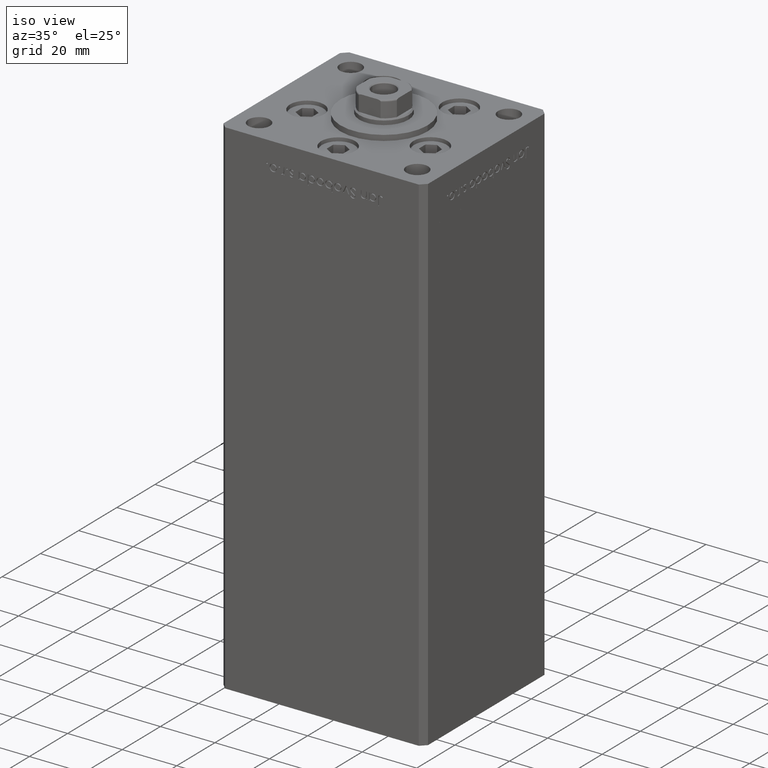
[diagram: clean part render]
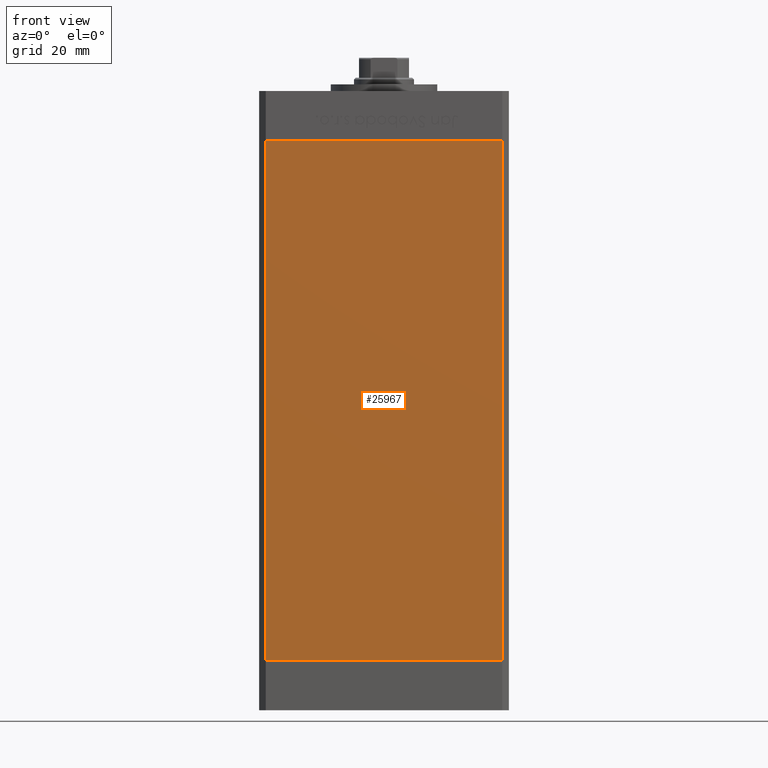
[diagram: tour spotlight — one face highlighted and labeled with its STEP entity id]
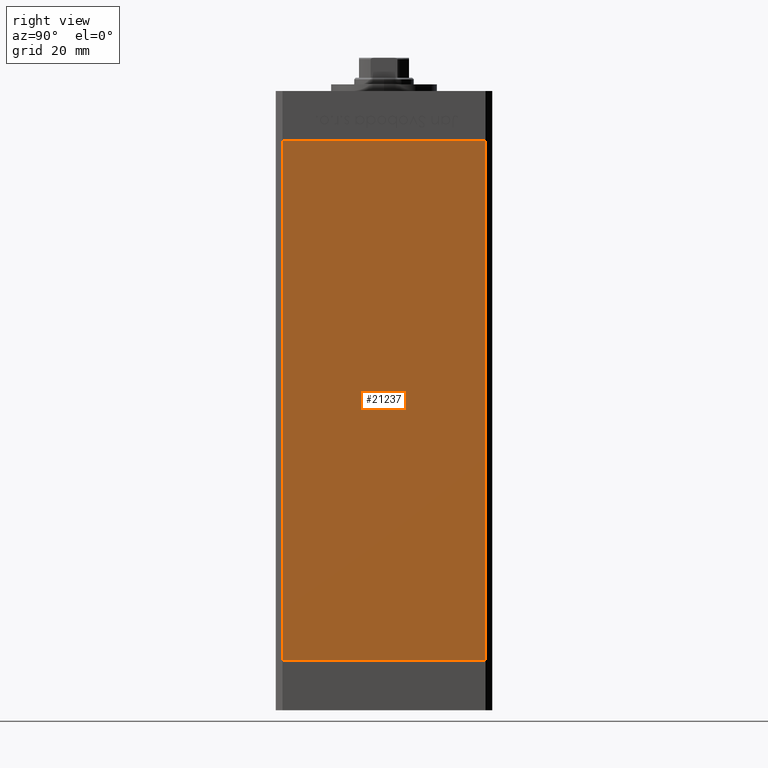
[diagram: tour spotlight — one face highlighted and labeled with its STEP entity id]
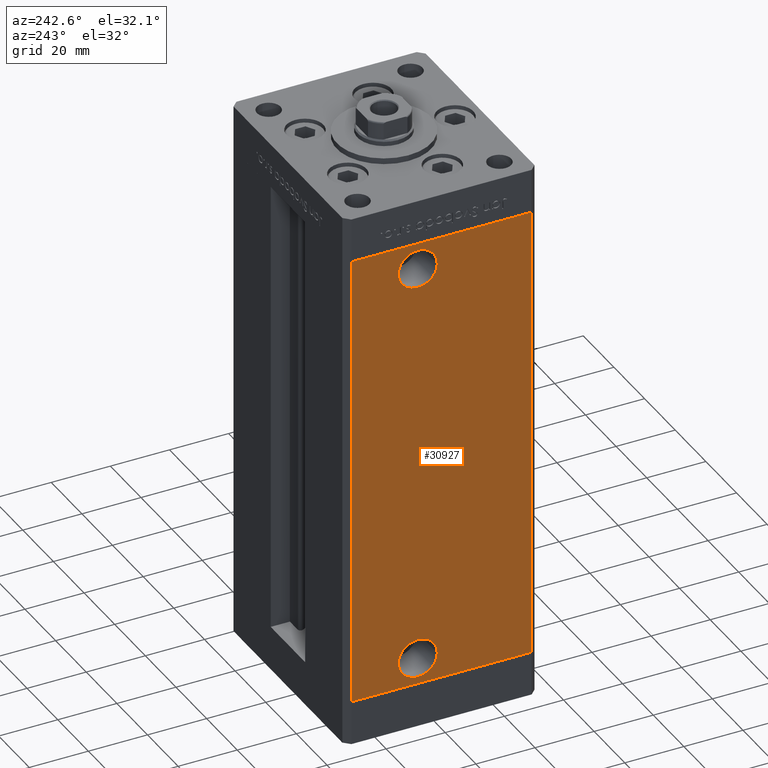
[diagram: tour spotlight — one face highlighted and labeled with its STEP entity id]
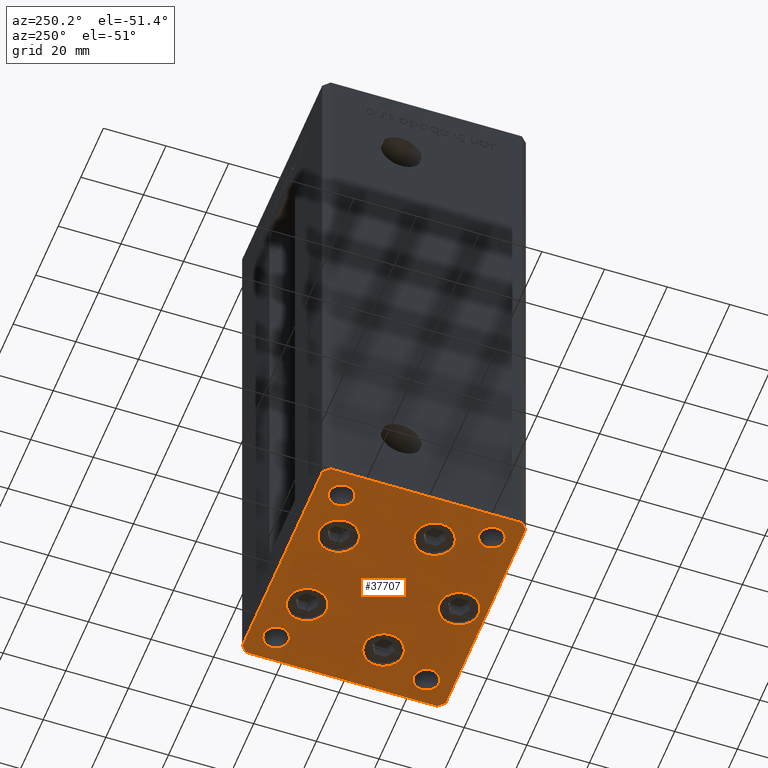
[diagram: tour spotlight — one face highlighted and labeled with its STEP entity id]
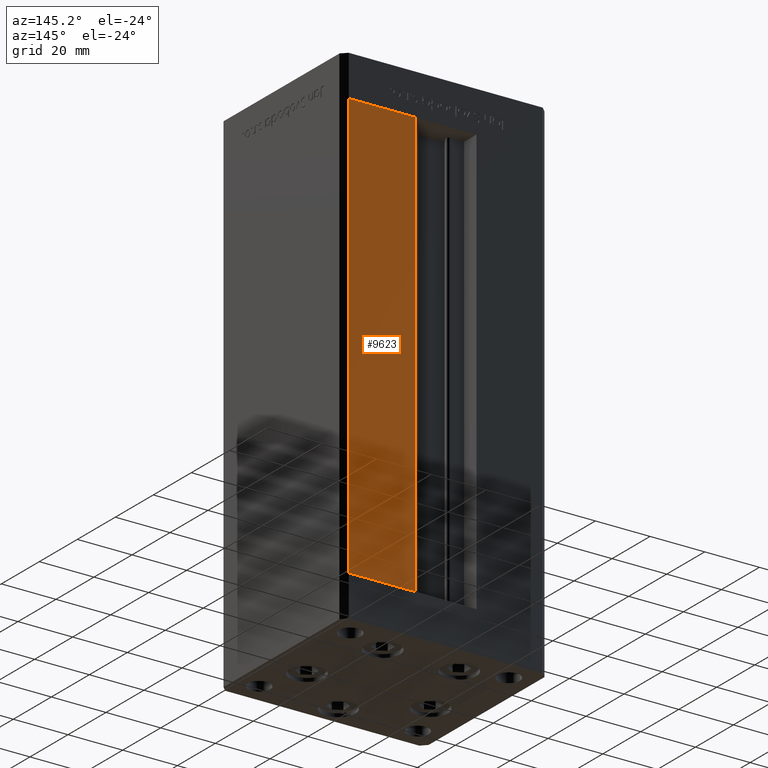
[diagram: tour spotlight — one face highlighted and labeled with its STEP entity id]
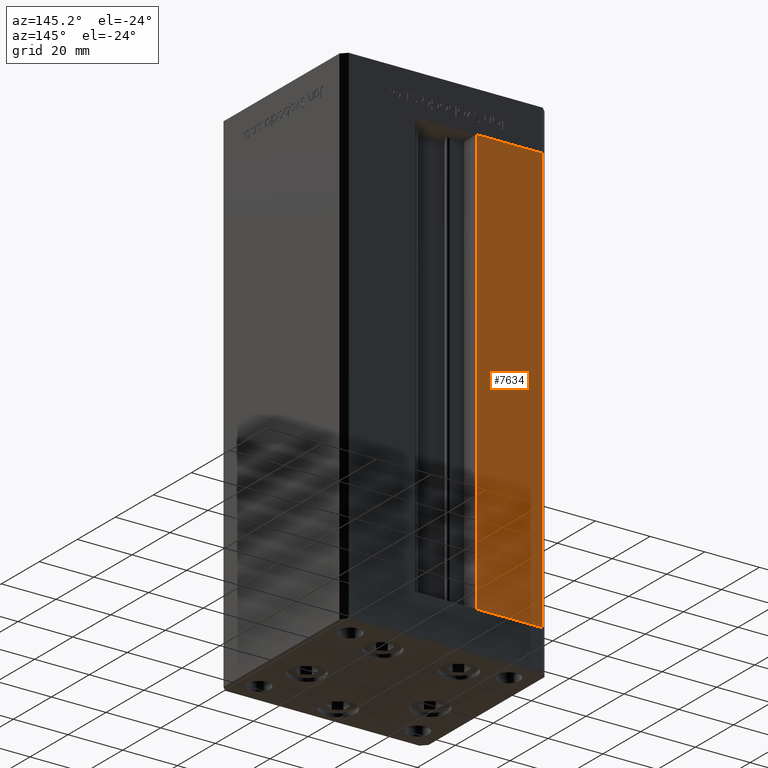
[diagram: tour spotlight — one face highlighted and labeled with its STEP entity id]
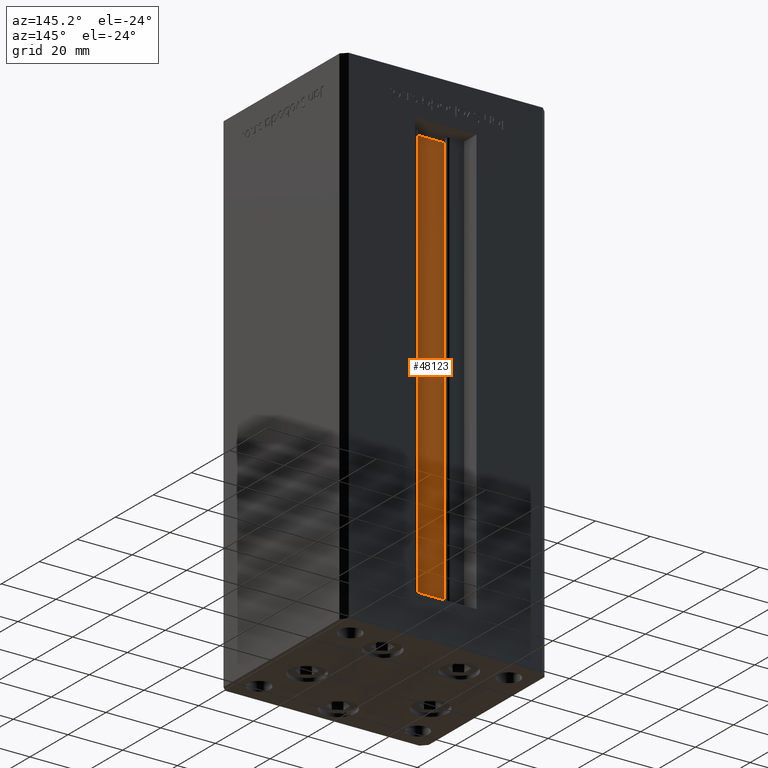
[diagram: tour spotlight — one face highlighted and labeled with its STEP entity id]
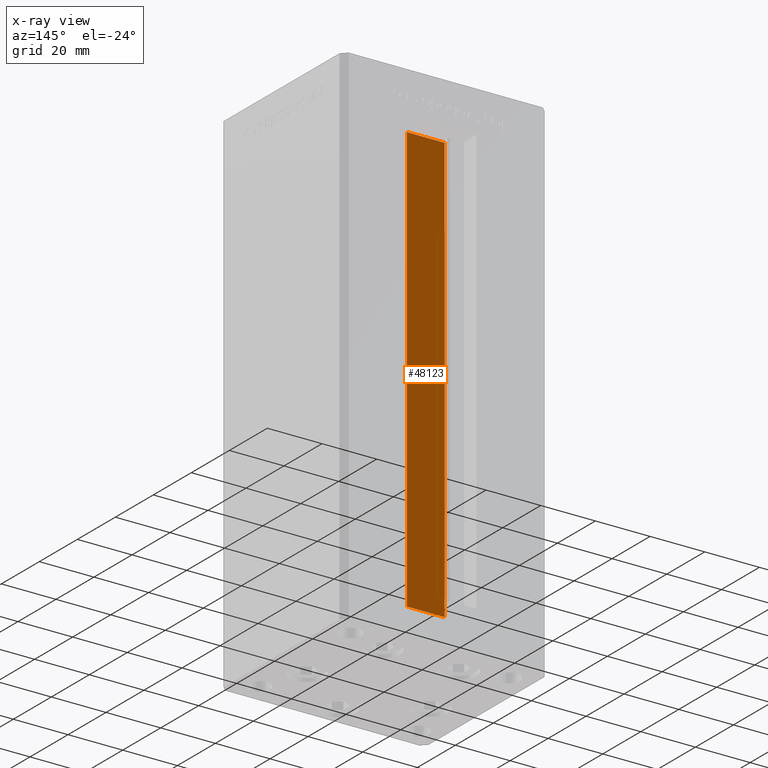
[diagram: x-ray of the same camera — body ghosted, this tour face saturated]
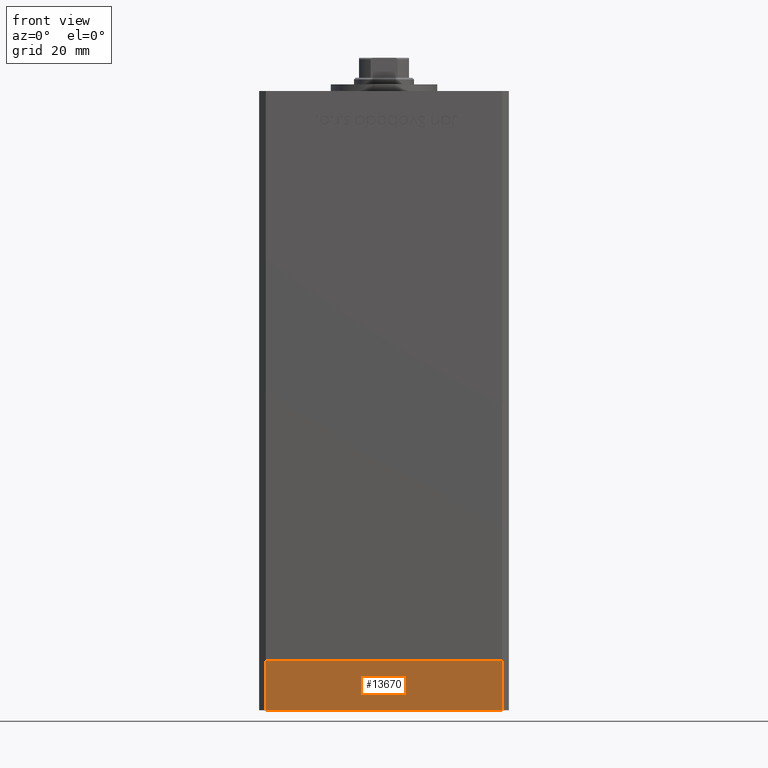
[diagram: tour spotlight — one face highlighted and labeled with its STEP entity id]
A machine part: a face-by-face anatomy tour. The part has 1183 B-rep faces; the first image is the clean iso view, then the 8 largest visible faces are spotlighted one at a time (largest first), each with its STEP entity span.

Face 1 — front view, entity #25967. In plain terms, the highlighted planar face has unit normal (0, 1, 0).
Definition (entity closure, byte-faithful):
#868 = VECTOR ( 'NONE', #9389, 1000.000000000000000 ) ;
#2019 = VECTOR ( 'NONE', #15200, 1000.000000000000000 ) ;
#2299 = DIRECTION ( 'NONE',  ( 1.000000000000000000, 0.000000000000000000, 0.000000000000000000 ) ) ;
#5187 = ORIENTED_EDGE ( 'NONE', *, *, #42326, .T. ) ;
#5468 = FACE_OUTER_BOUND ( 'NONE', #33729, .T. ) ;
#5989 = PLANE ( 'NONE',  #50704 ) ;
#6705 = EDGE_CURVE ( 'NONE', #38616, #35753, #29625, .T. ) ;
#6835 = CARTESIAN_POINT ( 'NONE',  ( -35.49999999999999289, -32.50000000000000000, 0.000000000000000000 ) ) ;
#9389 = DIRECTION ( 'NONE',  ( 1.000000000000000000, 0.000000000000000000, 0.000000000000000000 ) ) ;
#9842 = CARTESIAN_POINT ( 'NONE',  ( 35.49999999999999289, -32.50000000000000000, 156.0000000000000000 ) ) ;
#10094 = CARTESIAN_POINT ( 'NONE',  ( -35.49999999999999289, -32.50000000000000000, 156.0000000000000000 ) ) ;
#11077 = VERTEX_POINT ( 'NONE', #17949 ) ;
#13121 = DIRECTION ( 'NONE',  ( 0.000000000000000000, 1.000000000000000000, 0.000000000000000000 ) ) ;
#13667 = ORIENTED_EDGE ( 'NONE', *, *, #15726, .F. ) ;
#15200 = DIRECTION ( 'NONE',  ( -0.000000000000000000, -0.000000000000000000, -1.000000000000000000 ) ) ;
#15726 = EDGE_CURVE ( 'NONE', #38616, #20259, #17039, .T. ) ;
#17039 = LINE ( 'NONE', #45023, #868 ) ;
#17949 = CARTESIAN_POINT ( 'NONE',  ( 35.49999999999999289, -32.50000000000000000, 0.000000000000000000 ) ) ;
#20259 = VERTEX_POINT ( 'NONE', #9842 ) ;
#21428 = DIRECTION ( 'NONE',  ( -0.000000000000000000, -0.000000000000000000, -1.000000000000000000 ) ) ;
#23453 = ORIENTED_EDGE ( 'NONE', *, *, #35288, .F. ) ;
#25967 = ADVANCED_FACE ( 'NONE', ( #5468 ), #5989, .F. ) ;
#29625 = LINE ( 'NONE', #10094, #41028 ) ;
#30024 = VECTOR ( 'NONE', #2299, 1000.000000000000000 ) ;
#30679 = CARTESIAN_POINT ( 'NONE',  ( -35.49999999999999289, -32.50000000000000000, 156.0000000000000000 ) ) ;
#33729 = EDGE_LOOP ( 'NONE', ( #5187, #23453, #13667, #42901 ) ) ;
#33953 = CARTESIAN_POINT ( 'NONE',  ( -35.49999999999999289, -32.50000000000000000, 0.000000000000000000 ) ) ;
#35288 = EDGE_CURVE ( 'NONE', #20259, #11077, #51602, .T. ) ;
#35753 = VERTEX_POINT ( 'NONE', #6835 ) ;
#37660 = DIRECTION ( 'NONE',  ( 0.000000000000000000, -0.000000000000000000, 1.000000000000000000 ) ) ;
#38616 = VERTEX_POINT ( 'NONE', #30679 ) ;
#41028 = VECTOR ( 'NONE', #21428, 1000.000000000000000 ) ;
#42326 = EDGE_CURVE ( 'NONE', #35753, #11077, #42642, .T. ) ;
#42642 = LINE ( 'NONE', #33953, #30024 ) ;
#42901 = ORIENTED_EDGE ( 'NONE', *, *, #6705, .T. ) ;
#45023 = CARTESIAN_POINT ( 'NONE',  ( -35.49999999999999289, -32.50000000000000000, 156.0000000000000000 ) ) ;
#46099 = CARTESIAN_POINT ( 'NONE',  ( -35.49999999999999289, -32.50000000000000000, 156.0000000000000000 ) ) ;
#50704 = AXIS2_PLACEMENT_3D ( 'NONE', #46099, #13121, #37660 ) ;
#51342 = CARTESIAN_POINT ( 'NONE',  ( 35.49999999999999289, -32.50000000000000000, 156.0000000000000000 ) ) ;
#51602 = LINE ( 'NONE', #51342, #2019 ) ;

Face 2 — right view, entity #21237. In plain terms, the highlighted planar face has unit normal (1, -0, 0).
Definition (entity closure, byte-faithful):
#1276 = EDGE_CURVE ( 'NONE', #15411, #18129, #19143, .T. ) ;
#1632 = FACE_OUTER_BOUND ( 'NONE', #37740, .T. ) ;
#2324 = VERTEX_POINT ( 'NONE', #47311 ) ;
#5458 = DIRECTION ( 'NONE',  ( -0.000000000000000000, -0.000000000000000000, -1.000000000000000000 ) ) ;
#6499 = DIRECTION ( 'NONE',  ( -0.000000000000000000, -0.000000000000000000, -1.000000000000000000 ) ) ;
#6806 = ORIENTED_EDGE ( 'NONE', *, *, #22714, .T. ) ;
#7290 = CARTESIAN_POINT ( 'NONE',  ( 37.50000000000000711, 30.50000000000000000, 0.000000000000000000 ) ) ;
#7922 = CARTESIAN_POINT ( 'NONE',  ( 37.49999999999999289, -30.50000000000000000, 156.0000000000000000 ) ) ;
#8161 = LINE ( 'NONE', #15819, #31203 ) ;
#10459 = LINE ( 'NONE', #31292, #35386 ) ;
#10671 = VECTOR ( 'NONE', #6499, 1000.000000000000000 ) ;
#10982 = CARTESIAN_POINT ( 'NONE',  ( 37.50000000000000711, 30.50000000000000000, 156.0000000000000000 ) ) ;
#13396 = VERTEX_POINT ( 'NONE', #17456 ) ;
#14219 = EDGE_CURVE ( 'NONE', #15411, #13396, #10459, .T. ) ;
#15411 = VERTEX_POINT ( 'NONE', #21825 ) ;
#15819 = CARTESIAN_POINT ( 'NONE',  ( 37.50000000000000711, 30.50000000000000000, 0.000000000000000000 ) ) ;
#17456 = CARTESIAN_POINT ( 'NONE',  ( 37.49999999999999289, -30.50000000000000000, 156.0000000000000000 ) ) ;
#18129 = VERTEX_POINT ( 'NONE', #7290 ) ;
#19143 = LINE ( 'NONE', #10982, #10671 ) ;
#19171 = ORIENTED_EDGE ( 'NONE', *, *, #1276, .F. ) ;
#21237 = ADVANCED_FACE ( 'NONE', ( #1632 ), #29315, .T. ) ;
#21522 = EDGE_CURVE ( 'NONE', #18129, #2324, #8161, .T. ) ;
#21825 = CARTESIAN_POINT ( 'NONE',  ( 37.50000000000000711, 30.50000000000000000, 156.0000000000000000 ) ) ;
#22714 = EDGE_CURVE ( 'NONE', #13396, #2324, #25242, .T. ) ;
#25242 = LINE ( 'NONE', #7922, #26186 ) ;
#25615 = CARTESIAN_POINT ( 'NONE',  ( 37.50000000000000711, 30.50000000000000000, 156.0000000000000000 ) ) ;
#26186 = VECTOR ( 'NONE', #5458, 1000.000000000000000 ) ;
#29315 = PLANE ( 'NONE',  #48084 ) ;
#30798 = ORIENTED_EDGE ( 'NONE', *, *, #14219, .T. ) ;
#31203 = VECTOR ( 'NONE', #31919, 1000.000000000000000 ) ;
#31292 = CARTESIAN_POINT ( 'NONE',  ( 37.50000000000000711, 30.50000000000000000, 156.0000000000000000 ) ) ;
#31919 = DIRECTION ( 'NONE',  ( -2.275047181608927644E-16, -1.000000000000000000, 0.000000000000000000 ) ) ;
#35386 = VECTOR ( 'NONE', #39222, 1000.000000000000000 ) ;
#37691 = ORIENTED_EDGE ( 'NONE', *, *, #21522, .F. ) ;
#37740 = EDGE_LOOP ( 'NONE', ( #37691, #19171, #30798, #6806 ) ) ;
#39222 = DIRECTION ( 'NONE',  ( -2.275047181608927644E-16, -1.000000000000000000, 0.000000000000000000 ) ) ;
#41459 = DIRECTION ( 'NONE',  ( 2.275047181608927644E-16, 1.000000000000000000, 0.000000000000000000 ) ) ;
#41717 = DIRECTION ( 'NONE',  ( 1.000000000000000000, -2.275047181608927644E-16, 0.000000000000000000 ) ) ;
#47311 = CARTESIAN_POINT ( 'NONE',  ( 37.49999999999999289, -30.50000000000000000, 0.000000000000000000 ) ) ;
#48084 = AXIS2_PLACEMENT_3D ( 'NONE', #25615, #41717, #41459 ) ;

Face 3 — auxiliary view, entity #30927. In plain terms, the highlighted planar face has unit normal (1, 0, 0).
Definition (entity closure, byte-faithful):
#122 = DIRECTION ( 'NONE',  ( -0.000000000000000000, -0.000000000000000000, -1.000000000000000000 ) ) ;
#410 = EDGE_CURVE ( 'NONE', #17178, #25008, #11477, .T. ) ;
#936 = LINE ( 'NONE', #32579, #42677 ) ;
#1840 = EDGE_CURVE ( 'NONE', #28986, #19159, #38680, .T. ) ;
#2134 = ORIENTED_EDGE ( 'NONE', *, *, #41656, .T. ) ;
#2695 = CARTESIAN_POINT ( 'NONE',  ( -37.50000000000000000, 7.999999999999991118, 147.0000000000000284 ) ) ;
#3690 = EDGE_LOOP ( 'NONE', ( #48012, #20599 ) ) ;
#3722 = DIRECTION ( 'NONE',  ( -1.000000000000000000, -2.275047181608927644E-16, 0.000000000000000000 ) ) ;
#4668 = CARTESIAN_POINT ( 'NONE',  ( -37.50000000000000000, 14.58000000000000718, 147.0000000000000284 ) ) ;
#5038 = CARTESIAN_POINT ( 'NONE',  ( -37.50000000000000711, 30.50000000000000000, 156.0000000000000000 ) ) ;
#5612 = CARTESIAN_POINT ( 'NONE',  ( -37.50000000000000000, 1.419999999999975948, 147.0000000000000284 ) ) ;
#5708 = CARTESIAN_POINT ( 'NONE',  ( -37.50000000000000000, 7.999999999999991118, 9.000000000000000000 ) ) ;
#6870 = DIRECTION ( 'NONE',  ( 0.000000000000000000, -1.000000000000000000, 0.000000000000000000 ) ) ;
#7426 = CIRCLE ( 'NONE', #47063, 6.580000000000003624 ) ;
#8969 = VECTOR ( 'NONE', #18862, 1000.000000000000000 ) ;
#11271 = CIRCLE ( 'NONE', #24733, 6.580000000000015170 ) ;
#11477 = CIRCLE ( 'NONE', #46020, 6.580000000000003624 ) ;
#11540 = DIRECTION ( 'NONE',  ( -2.275047181608927644E-16, 1.000000000000000000, 0.000000000000000000 ) ) ;
#11590 = ORIENTED_EDGE ( 'NONE', *, *, #19558, .F. ) ;
#14561 = DIRECTION ( 'NONE',  ( 0.000000000000000000, -1.000000000000000000, 0.000000000000000000 ) ) ;
#14661 = VECTOR ( 'NONE', #122, 1000.000000000000000 ) ;
#14712 = PLANE ( 'NONE',  #28104 ) ;
#16831 = ORIENTED_EDGE ( 'NONE', *, *, #44158, .F. ) ;
#16932 = CARTESIAN_POINT ( 'NONE',  ( -37.50000000000000000, 1.419999999999988161, 9.000000000000000000 ) ) ;
#17178 = VERTEX_POINT ( 'NONE', #16932 ) ;
#18463 = CARTESIAN_POINT ( 'NONE',  ( -37.49999999999999289, -30.50000000000000000, 156.0000000000000000 ) ) ;
#18862 = DIRECTION ( 'NONE',  ( -0.000000000000000000, -0.000000000000000000, -1.000000000000000000 ) ) ;
#19159 = VERTEX_POINT ( 'NONE', #21235 ) ;
#19449 = FACE_BOUND ( 'NONE', #28960, .T. ) ;
#19558 = EDGE_CURVE ( 'NONE', #28986, #46018, #45668, .T. ) ;
#20599 = ORIENTED_EDGE ( 'NONE', *, *, #50806, .F. ) ;
#20654 = CARTESIAN_POINT ( 'NONE',  ( -37.49999999999999289, -30.50000000000000000, 156.0000000000000000 ) ) ;
#21235 = CARTESIAN_POINT ( 'NONE',  ( -37.50000000000000711, 30.50000000000000000, 0.000000000000000000 ) ) ;
#21859 = ORIENTED_EDGE ( 'NONE', *, *, #36312, .F. ) ;
#22045 = DIRECTION ( 'NONE',  ( 0.000000000000000000, -1.000000000000000000, 0.000000000000000000 ) ) ;
#24733 = AXIS2_PLACEMENT_3D ( 'NONE', #35618, #43789, #6870 ) ;
#25008 = VERTEX_POINT ( 'NONE', #28184 ) ;
#27105 = DIRECTION ( 'NONE',  ( 1.000000000000000000, 2.275047181608927644E-16, -0.000000000000000000 ) ) ;
#28104 = AXIS2_PLACEMENT_3D ( 'NONE', #47687, #27105, #11540 ) ;
#28184 = CARTESIAN_POINT ( 'NONE',  ( -37.50000000000000000, 14.57999999999999652, 9.000000000000000000 ) ) ;
#28359 = DIRECTION ( 'NONE',  ( 2.275047181608927644E-16, -1.000000000000000000, 0.000000000000000000 ) ) ;
#28960 = EDGE_LOOP ( 'NONE', ( #31896, #16831 ) ) ;
#28986 = VERTEX_POINT ( 'NONE', #43442 ) ;
#29429 = VERTEX_POINT ( 'NONE', #5612 ) ;
#30644 = EDGE_CURVE ( 'NONE', #29429, #40686, #11271, .T. ) ;
#30927 = ADVANCED_FACE ( 'NONE', ( #35292, #19449, #35558 ), #14712, .F. ) ;
#31896 = ORIENTED_EDGE ( 'NONE', *, *, #30644, .F. ) ;
#32579 = CARTESIAN_POINT ( 'NONE',  ( -37.50000000000000711, 30.50000000000000000, 0.000000000000000000 ) ) ;
#33413 = DIRECTION ( 'NONE',  ( -1.000000000000000000, -2.275047181608927644E-16, 0.000000000000000000 ) ) ;
#34972 = CARTESIAN_POINT ( 'NONE',  ( -37.50000000000000711, 30.50000000000000000, 156.0000000000000000 ) ) ;
#35191 = AXIS2_PLACEMENT_3D ( 'NONE', #2695, #47275, #14561 ) ;
#35292 = FACE_BOUND ( 'NONE', #3690, .T. ) ;
#35558 = FACE_OUTER_BOUND ( 'NONE', #36910, .T. ) ;
#35618 = CARTESIAN_POINT ( 'NONE',  ( -37.50000000000000000, 7.999999999999991118, 147.0000000000000284 ) ) ;
#35647 = DIRECTION ( 'NONE',  ( 0.000000000000000000, -1.000000000000000000, 0.000000000000000000 ) ) ;
#36312 = EDGE_CURVE ( 'NONE', #46018, #40554, #40202, .T. ) ;
#36910 = EDGE_LOOP ( 'NONE', ( #2134, #21859, #11590, #46470 ) ) ;
#38548 = CIRCLE ( 'NONE', #35191, 6.580000000000015170 ) ;
#38680 = LINE ( 'NONE', #34972, #8969 ) ;
#40202 = LINE ( 'NONE', #20654, #14661 ) ;
#40554 = VERTEX_POINT ( 'NONE', #46144 ) ;
#40686 = VERTEX_POINT ( 'NONE', #4668 ) ;
#41656 = EDGE_CURVE ( 'NONE', #19159, #40554, #936, .T. ) ;
#42677 = VECTOR ( 'NONE', #28359, 1000.000000000000000 ) ;
#43046 = CARTESIAN_POINT ( 'NONE',  ( -37.50000000000000000, 7.999999999999991118, 9.000000000000000000 ) ) ;
#43442 = CARTESIAN_POINT ( 'NONE',  ( -37.50000000000000711, 30.50000000000000000, 156.0000000000000000 ) ) ;
#43789 = DIRECTION ( 'NONE',  ( -1.000000000000000000, -2.275047181608927644E-16, 0.000000000000000000 ) ) ;
#44158 = EDGE_CURVE ( 'NONE', #40686, #29429, #38548, .T. ) ;
#44661 = VECTOR ( 'NONE', #48843, 1000.000000000000000 ) ;
#45668 = LINE ( 'NONE', #5038, #44661 ) ;
#46018 = VERTEX_POINT ( 'NONE', #18463 ) ;
#46020 = AXIS2_PLACEMENT_3D ( 'NONE', #5708, #33413, #22045 ) ;
#46144 = CARTESIAN_POINT ( 'NONE',  ( -37.49999999999999289, -30.50000000000000000, 0.000000000000000000 ) ) ;
#46470 = ORIENTED_EDGE ( 'NONE', *, *, #1840, .T. ) ;
#47063 = AXIS2_PLACEMENT_3D ( 'NONE', #43046, #3722, #35647 ) ;
#47275 = DIRECTION ( 'NONE',  ( -1.000000000000000000, -2.275047181608927644E-16, 0.000000000000000000 ) ) ;
#47687 = CARTESIAN_POINT ( 'NONE',  ( -37.50000000000000711, 30.50000000000000000, 156.0000000000000000 ) ) ;
#48012 = ORIENTED_EDGE ( 'NONE', *, *, #410, .F. ) ;
#48843 = DIRECTION ( 'NONE',  ( 2.275047181608927644E-16, -1.000000000000000000, 0.000000000000000000 ) ) ;
#50806 = EDGE_CURVE ( 'NONE', #25008, #17178, #7426, .T. ) ;

Face 4 — auxiliary view, entity #37707. In plain terms, the highlighted planar face has unit normal (0, 0, -1).
Definition (entity closure, byte-faithful):
#14 = CARTESIAN_POINT ( 'NONE',  ( 25.00000000000000711, 24.00000000000000711, 0.000000000000000000 ) ) ;
#116 = CARTESIAN_POINT ( 'NONE',  ( 7.741068579633223479, 19.50000000000000000, 0.000000000000000000 ) ) ;
#133 = CARTESIAN_POINT ( 'NONE',  ( -37.49999999999998579, -30.50000000000001421, 0.000000000000000000 ) ) ;
#177 = AXIS2_PLACEMENT_3D ( 'NONE', #44019, #28177, #32651 ) ;
#201 = VERTEX_POINT ( 'NONE', #46412 ) ;
#348 = CARTESIAN_POINT ( 'NONE',  ( 37.50000000000001421, -30.50000000000000711, 0.000000000000000000 ) ) ;
#645 = CARTESIAN_POINT ( 'NONE',  ( 35.50000000000000711, -32.50000000000000711, 0.000000000000000000 ) ) ;
#783 = AXIS2_PLACEMENT_3D ( 'NONE', #30446, #6167, #34137 ) ;
#908 = CARTESIAN_POINT ( 'NONE',  ( -6.249999999999997335, -24.00000000000000000, 0.000000000000000000 ) ) ;
#978 = EDGE_LOOP ( 'NONE', ( #5394, #41044 ) ) ;
#1415 = DIRECTION ( 'NONE',  ( 1.000000000000000000, 0.000000000000000000, 0.000000000000000000 ) ) ;
#1688 = ORIENTED_EDGE ( 'NONE', *, *, #39109, .F. ) ;
#1703 = CIRCLE ( 'NONE', #42087, 6.250000000000000000 ) ;
#1720 = EDGE_CURVE ( 'NONE', #42189, #7295, #50259, .T. ) ;
#2250 = AXIS2_PLACEMENT_3D ( 'NONE', #23660, #39777, #3625 ) ;
#2304 = LINE ( 'NONE', #18377, #20893 ) ;
#2787 = DIRECTION ( 'NONE',  ( 1.000000000000000000, 0.000000000000000000, 0.000000000000000000 ) ) ;
#2900 = DIRECTION ( 'NONE',  ( 0.7071067811865487940, 0.7071067811865463515, 0.000000000000000000 ) ) ;
#2986 = EDGE_LOOP ( 'NONE', ( #27035, #22770 ) ) ;
#3009 = EDGE_CURVE ( 'NONE', #44308, #10825, #8372, .T. ) ;
#3108 = CARTESIAN_POINT ( 'NONE',  ( 25.00000000000000711, -23.99999999999999289, 0.000000000000000000 ) ) ;
#3484 = EDGE_LOOP ( 'NONE', ( #36555, #36768 ) ) ;
#3625 = DIRECTION ( 'NONE',  ( 1.000000000000000000, 0.000000000000000000, 0.000000000000000000 ) ) ;
#3755 = DIRECTION ( 'NONE',  ( 0.000000000000000000, -0.000000000000000000, -1.000000000000000000 ) ) ;
#3876 = DIRECTION ( 'NONE',  ( -0.000000000000000000, 0.000000000000000000, 1.000000000000000000 ) ) ;
#4033 = DIRECTION ( 'NONE',  ( 1.000000000000000000, 0.000000000000000000, 0.000000000000000000 ) ) ;
#4125 = CIRCLE ( 'NONE', #783, 6.250000000000001776 ) ;
#4836 = CIRCLE ( 'NONE', #47824, 6.250000000000000000 ) ;
#5141 = EDGE_CURVE ( 'NONE', #51754, #26480, #4836, .T. ) ;
#5394 = ORIENTED_EDGE ( 'NONE', *, *, #15084, .T. ) ;
#5491 = DIRECTION ( 'NONE',  ( -0.000000000000000000, 0.000000000000000000, 1.000000000000000000 ) ) ;
#5492 = EDGE_CURVE ( 'NONE', #20207, #44308, #41542, .T. ) ;
#5665 = AXIS2_PLACEMENT_3D ( 'NONE', #41380, #5491, #41895 ) ;
#5917 = ORIENTED_EDGE ( 'NONE', *, *, #51301, .T. ) ;
#6167 = DIRECTION ( 'NONE',  ( 0.000000000000000000, -0.000000000000000000, -1.000000000000000000 ) ) ;
#6509 = CARTESIAN_POINT ( 'NONE',  ( -37.50000000000001421, 30.49999999999998579, 0.000000000000000000 ) ) ;
#7218 = CARTESIAN_POINT ( 'NONE',  ( -20.24106857963322881, 19.49999999999999645, 0.000000000000000000 ) ) ;
#7295 = VERTEX_POINT ( 'NONE', #7765 ) ;
#7530 = ORIENTED_EDGE ( 'NONE', *, *, #29836, .T. ) ;
#7765 = CARTESIAN_POINT ( 'NONE',  ( -28.87741699796952233, -8.000000000000005329, 0.000000000000000000 ) ) ;
#7865 = VECTOR ( 'NONE', #17064, 999.9999999999998863 ) ;
#7928 = EDGE_CURVE ( 'NONE', #33717, #40994, #45291, .T. ) ;
#7964 = DIRECTION ( 'NONE',  ( 1.000000000000000000, 0.000000000000000000, 0.000000000000000000 ) ) ;
#8050 = DIRECTION ( 'NONE',  ( 1.000000000000000000, 0.000000000000000000, 0.000000000000000000 ) ) ;
#8188 = DIRECTION ( 'NONE',  ( 1.000000000000000000, 0.000000000000000000, 0.000000000000000000 ) ) ;
#8365 = FACE_BOUND ( 'NONE', #3484, .T. ) ;
#8372 = LINE ( 'NONE', #31216, #44428 ) ;
#8534 = DIRECTION ( 'NONE',  ( 1.000000000000000000, 0.000000000000000000, 0.000000000000000000 ) ) ;
#8703 = VECTOR ( 'NONE', #2900, 1000.000000000000000 ) ;
#8800 = CARTESIAN_POINT ( 'NONE',  ( -25.00000000000001421, 24.00000000000000711, 0.000000000000000000 ) ) ;
#9145 = LINE ( 'NONE', #49253, #12558 ) ;
#9206 = CIRCLE ( 'NONE', #24384, 6.250000000000000000 ) ;
#9266 = ORIENTED_EDGE ( 'NONE', *, *, #14666, .T. ) ;
#9267 = ORIENTED_EDGE ( 'NONE', *, *, #1720, .T. ) ;
#9402 = VERTEX_POINT ( 'NONE', #23839 ) ;
#9425 = DIRECTION ( 'NONE',  ( 1.000000000000000000, 0.000000000000000000, 0.000000000000000000 ) ) ;
#10618 = VERTEX_POINT ( 'NONE', #49287 ) ;
#10676 = ORIENTED_EDGE ( 'NONE', *, *, #20574, .F. ) ;
#10825 = VERTEX_POINT ( 'NONE', #645 ) ;
#10976 = AXIS2_PLACEMENT_3D ( 'NONE', #48720, #3876, #16523 ) ;
#11090 = EDGE_LOOP ( 'NONE', ( #31762, #9267 ) ) ;
#11469 = CARTESIAN_POINT ( 'NONE',  ( -29.00000000000001066, -23.99999999999999289, 0.000000000000000000 ) ) ;
#11776 = AXIS2_PLACEMENT_3D ( 'NONE', #21441, #20405, #1415 ) ;
#11807 = FACE_BOUND ( 'NONE', #44317, .T. ) ;
#11960 = VECTOR ( 'NONE', #34741, 1000.000000000000000 ) ;
#11978 = ORIENTED_EDGE ( 'NONE', *, *, #5492, .T. ) ;
#12064 = FACE_BOUND ( 'NONE', #11090, .T. ) ;
#12070 = VERTEX_POINT ( 'NONE', #14 ) ;
#12346 = LINE ( 'NONE', #37151, #37718 ) ;
#12505 = ORIENTED_EDGE ( 'NONE', *, *, #5141, .T. ) ;
#12558 = VECTOR ( 'NONE', #26015, 1000.000000000000000 ) ;
#12852 = DIRECTION ( 'NONE',  ( 0.000000000000000000, -0.000000000000000000, -1.000000000000000000 ) ) ;
#12996 = CIRCLE ( 'NONE', #34926, 4.000000000000000000 ) ;
#13307 = EDGE_CURVE ( 'NONE', #23747, #24528, #9145, .T. ) ;
#13435 = EDGE_CURVE ( 'NONE', #10618, #41906, #9206, .T. ) ;
#13962 = DIRECTION ( 'NONE',  ( 1.000000000000000000, 0.000000000000000000, 0.000000000000000000 ) ) ;
#14430 = DIRECTION ( 'NONE',  ( 0.000000000000000000, -0.000000000000000000, -1.000000000000000000 ) ) ;
#14666 = EDGE_CURVE ( 'NONE', #36592, #15091, #1703, .T. ) ;
#14765 = CARTESIAN_POINT ( 'NONE',  ( 35.50000000000000711, -32.50000000000000711, 0.000000000000000000 ) ) ;
#14911 = ORIENTED_EDGE ( 'NONE', *, *, #35051, .T. ) ;
#15084 = EDGE_CURVE ( 'NONE', #9402, #36658, #37066, .T. ) ;
#15091 = VERTEX_POINT ( 'NONE', #908 ) ;
#15521 = AXIS2_PLACEMENT_3D ( 'NONE', #32115, #27891, #41785 ) ;
#16523 = DIRECTION ( 'NONE',  ( 1.000000000000000000, 0.000000000000000000, 0.000000000000000000 ) ) ;
#16544 = CARTESIAN_POINT ( 'NONE',  ( 22.62741699796951877, -8.000000000000000000, 0.000000000000000000 ) ) ;
#16546 = LINE ( 'NONE', #33689, #7865 ) ;
#16842 = CIRCLE ( 'NONE', #10976, 3.999999999999996447 ) ;
#16986 = EDGE_CURVE ( 'NONE', #7295, #42189, #4125, .T. ) ;
#17064 = DIRECTION ( 'NONE',  ( -0.7071067811865482389, 0.7071067811865469066, 0.000000000000000000 ) ) ;
#17223 = VERTEX_POINT ( 'NONE', #348 ) ;
#17260 = CARTESIAN_POINT ( 'NONE',  ( -37.49999999999998579, -30.50000000000001421, 0.000000000000000000 ) ) ;
#17741 = CARTESIAN_POINT ( 'NONE',  ( -37.50000000000001421, 30.49999999999998579, 0.000000000000000000 ) ) ;
#18344 = ORIENTED_EDGE ( 'NONE', *, *, #43113, .T. ) ;
#18377 = CARTESIAN_POINT ( 'NONE',  ( 37.50000000000001421, -30.50000000000000711, 0.000000000000000000 ) ) ;
#18743 = CARTESIAN_POINT ( 'NONE',  ( -33.00000000000000711, 24.00000000000000711, 0.000000000000000000 ) ) ;
#18867 = AXIS2_PLACEMENT_3D ( 'NONE', #29267, #21863, #13962 ) ;
#18906 = DIRECTION ( 'NONE',  ( 1.000000000000000000, 0.000000000000000000, 0.000000000000000000 ) ) ;
#19689 = ORIENTED_EDGE ( 'NONE', *, *, #13307, .T. ) ;
#19913 = CARTESIAN_POINT ( 'NONE',  ( -13.99106857963322703, 19.49999999999999645, 0.000000000000000000 ) ) ;
#19920 = AXIS2_PLACEMENT_3D ( 'NONE', #42446, #30833, #42191 ) ;
#19958 = FACE_BOUND ( 'NONE', #2986, .T. ) ;
#19959 = AXIS2_PLACEMENT_3D ( 'NONE', #32206, #44342, #8188 ) ;
#20031 = CARTESIAN_POINT ( 'NONE',  ( 16.37741699796951877, -8.000000000000000000, 0.000000000000000000 ) ) ;
#20162 = ORIENTED_EDGE ( 'NONE', *, *, #26055, .T. ) ;
#20207 = VERTEX_POINT ( 'NONE', #133 ) ;
#20405 = DIRECTION ( 'NONE',  ( 0.000000000000000000, -0.000000000000000000, -1.000000000000000000 ) ) ;
#20574 = EDGE_CURVE ( 'NONE', #40994, #33717, #16842, .T. ) ;
#20893 = VECTOR ( 'NONE', #32273, 1000.000000000000000 ) ;
#21441 = CARTESIAN_POINT ( 'NONE',  ( -29.00000000000001066, -23.99999999999999289, 0.000000000000000000 ) ) ;
#21504 = VERTEX_POINT ( 'NONE', #20031 ) ;
#21811 = VERTEX_POINT ( 'NONE', #3108 ) ;
#21863 = DIRECTION ( 'NONE',  ( -0.000000000000000000, 0.000000000000000000, 1.000000000000000000 ) ) ;
#22207 = CIRCLE ( 'NONE', #47507, 6.250000000000000000 ) ;
#22770 = ORIENTED_EDGE ( 'NONE', *, *, #13435, .T. ) ;
#22814 = DIRECTION ( 'NONE',  ( -0.000000000000000000, 0.000000000000000000, 1.000000000000000000 ) ) ;
#23036 = EDGE_LOOP ( 'NONE', ( #11978, #25203, #7530, #5917, #14911, #24697, #19689, #20162 ) ) ;
#23329 = DIRECTION ( 'NONE',  ( 0.000000000000000000, -0.000000000000000000, -1.000000000000000000 ) ) ;
#23427 = CARTESIAN_POINT ( 'NONE',  ( -16.37741699796951877, -8.000000000000005329, 0.000000000000000000 ) ) ;
#23660 = CARTESIAN_POINT ( 'NONE',  ( -22.62741699796951877, -8.000000000000005329, 0.000000000000000000 ) ) ;
#23747 = VERTEX_POINT ( 'NONE', #40120 ) ;
#23839 = CARTESIAN_POINT ( 'NONE',  ( -25.00000000000001066, -23.99999999999999289, 0.000000000000000000 ) ) ;
#23926 = FACE_BOUND ( 'NONE', #978, .T. ) ;
#24096 = CARTESIAN_POINT ( 'NONE',  ( -13.99106857963322703, 19.49999999999999645, 0.000000000000000000 ) ) ;
#24384 = AXIS2_PLACEMENT_3D ( 'NONE', #19913, #49656, #8050 ) ;
#24528 = VERTEX_POINT ( 'NONE', #17741 ) ;
#24697 = ORIENTED_EDGE ( 'NONE', *, *, #44282, .T. ) ;
#25203 = ORIENTED_EDGE ( 'NONE', *, *, #3009, .T. ) ;
#25282 = EDGE_LOOP ( 'NONE', ( #36603, #29174 ) ) ;
#25682 = FACE_BOUND ( 'NONE', #50338, .T. ) ;
#25865 = EDGE_CURVE ( 'NONE', #34061, #21811, #45663, .T. ) ;
#26015 = DIRECTION ( 'NONE',  ( -0.7071067811865426878, -0.7071067811865524577, 0.000000000000000000 ) ) ;
#26055 = EDGE_CURVE ( 'NONE', #24528, #20207, #30525, .T. ) ;
#26116 = CARTESIAN_POINT ( 'NONE',  ( -33.00000000000000711, -23.99999999999999289, 0.000000000000000000 ) ) ;
#26480 = VERTEX_POINT ( 'NONE', #116 ) ;
#27035 = ORIENTED_EDGE ( 'NONE', *, *, #36296, .T. ) ;
#27091 = CARTESIAN_POINT ( 'NONE',  ( 6.250000000000002665, -24.00000000000000000, 0.000000000000000000 ) ) ;
#27293 = DIRECTION ( 'NONE',  ( 1.000000000000000000, 0.000000000000000000, 0.000000000000000000 ) ) ;
#27891 = DIRECTION ( 'NONE',  ( -0.000000000000000000, 0.000000000000000000, 1.000000000000000000 ) ) ;
#28177 = DIRECTION ( 'NONE',  ( 0.000000000000000000, -0.000000000000000000, -1.000000000000000000 ) ) ;
#28374 = CARTESIAN_POINT ( 'NONE',  ( 28.87741699796952233, -8.000000000000000000, 0.000000000000000000 ) ) ;
#29166 = ORIENTED_EDGE ( 'NONE', *, *, #44340, .T. ) ;
#29174 = ORIENTED_EDGE ( 'NONE', *, *, #41268, .T. ) ;
#29217 = CIRCLE ( 'NONE', #19959, 6.250000000000000000 ) ;
#29267 = CARTESIAN_POINT ( 'NONE',  ( 29.00000000000001066, 24.00000000000000711, 0.000000000000000000 ) ) ;
#29654 = PLANE ( 'NONE',  #15521 ) ;
#29836 = EDGE_CURVE ( 'NONE', #10825, #17223, #50915, .T. ) ;
#30446 = CARTESIAN_POINT ( 'NONE',  ( -22.62741699796951877, -8.000000000000005329, 0.000000000000000000 ) ) ;
#30498 = ORIENTED_EDGE ( 'NONE', *, *, #7928, .F. ) ;
#30525 = LINE ( 'NONE', #6509, #11960 ) ;
#30833 = DIRECTION ( 'NONE',  ( 0.000000000000000000, -0.000000000000000000, -1.000000000000000000 ) ) ;
#31051 = DIRECTION ( 'NONE',  ( 0.000000000000000000, -0.000000000000000000, -1.000000000000000000 ) ) ;
#31216 = CARTESIAN_POINT ( 'NONE',  ( -35.49999999999998579, -32.50000000000001421, 0.000000000000000000 ) ) ;
#31530 = AXIS2_PLACEMENT_3D ( 'NONE', #35425, #3755, #7964 ) ;
#31762 = ORIENTED_EDGE ( 'NONE', *, *, #16986, .T. ) ;
#32115 = CARTESIAN_POINT ( 'NONE',  ( 0.000000000000000000, 0.000000000000000000, 0.000000000000000000 ) ) ;
#32206 = CARTESIAN_POINT ( 'NONE',  ( 2.939152317953647500E-15, -24.00000000000000000, 0.000000000000000000 ) ) ;
#32243 = ORIENTED_EDGE ( 'NONE', *, *, #35637, .F. ) ;
#32273 = DIRECTION ( 'NONE',  ( -1.478780668045802821E-15, 1.000000000000000000, 0.000000000000000000 ) ) ;
#32651 = DIRECTION ( 'NONE',  ( 1.000000000000000000, 0.000000000000000000, 0.000000000000000000 ) ) ;
#33295 = CARTESIAN_POINT ( 'NONE',  ( 13.99106857963322348, 19.50000000000000000, 0.000000000000000000 ) ) ;
#33689 = CARTESIAN_POINT ( 'NONE',  ( 37.49999999999992184, 30.50000000000001066, 0.000000000000000000 ) ) ;
#33717 = VERTEX_POINT ( 'NONE', #18743 ) ;
#34061 = VERTEX_POINT ( 'NONE', #50354 ) ;
#34137 = DIRECTION ( 'NONE',  ( 1.000000000000000000, 0.000000000000000000, 0.000000000000000000 ) ) ;
#34741 = DIRECTION ( 'NONE',  ( 4.550094363217855288E-16, -1.000000000000000000, 0.000000000000000000 ) ) ;
#34926 = AXIS2_PLACEMENT_3D ( 'NONE', #11469, #23329, #27293 ) ;
#35018 = EDGE_LOOP ( 'NONE', ( #1688, #32243 ) ) ;
#35051 = EDGE_CURVE ( 'NONE', #35072, #48198, #16546, .T. ) ;
#35072 = VERTEX_POINT ( 'NONE', #36872 ) ;
#35425 = CARTESIAN_POINT ( 'NONE',  ( 22.62741699796951877, -8.000000000000000000, 0.000000000000000000 ) ) ;
#35637 = EDGE_CURVE ( 'NONE', #12070, #201, #40785, .T. ) ;
#35948 = CIRCLE ( 'NONE', #19920, 4.000000000000003553 ) ;
#36296 = EDGE_CURVE ( 'NONE', #41906, #10618, #22207, .T. ) ;
#36555 = ORIENTED_EDGE ( 'NONE', *, *, #25865, .T. ) ;
#36592 = VERTEX_POINT ( 'NONE', #27091 ) ;
#36603 = ORIENTED_EDGE ( 'NONE', *, *, #37221, .T. ) ;
#36658 = VERTEX_POINT ( 'NONE', #26116 ) ;
#36696 = CARTESIAN_POINT ( 'NONE',  ( 20.24106857963322526, 19.50000000000000000, 0.000000000000000000 ) ) ;
#36768 = ORIENTED_EDGE ( 'NONE', *, *, #42048, .T. ) ;
#36855 = CIRCLE ( 'NONE', #44458, 6.250000000000000000 ) ;
#36872 = CARTESIAN_POINT ( 'NONE',  ( 37.49999999999992184, 30.50000000000001066, 0.000000000000000000 ) ) ;
#37014 = EDGE_CURVE ( 'NONE', #36658, #9402, #12996, .T. ) ;
#37066 = CIRCLE ( 'NONE', #11776, 4.000000000000000000 ) ;
#37151 = CARTESIAN_POINT ( 'NONE',  ( 35.49999999999992184, 32.50000000000000711, 0.000000000000000000 ) ) ;
#37221 = EDGE_CURVE ( 'NONE', #21504, #44510, #50927, .T. ) ;
#37707 = ADVANCED_FACE ( 'NONE', ( #19958, #11807, #40033, #44513, #12064, #45497, #8365, #25682, #45753, #23926 ), #29654, .T. ) ;
#37718 = VECTOR ( 'NONE', #41356, 1000.000000000000000 ) ;
#39109 = EDGE_CURVE ( 'NONE', #201, #12070, #42523, .T. ) ;
#39777 = DIRECTION ( 'NONE',  ( 0.000000000000000000, -0.000000000000000000, -1.000000000000000000 ) ) ;
#40033 = FACE_BOUND ( 'NONE', #25282, .T. ) ;
#40120 = CARTESIAN_POINT ( 'NONE',  ( -35.50000000000002842, 32.49999999999999289, 0.000000000000000000 ) ) ;
#40174 = DIRECTION ( 'NONE',  ( 0.000000000000000000, -0.000000000000000000, -1.000000000000000000 ) ) ;
#40785 = CIRCLE ( 'NONE', #18867, 4.000000000000003553 ) ;
#40994 = VERTEX_POINT ( 'NONE', #8800 ) ;
#41044 = ORIENTED_EDGE ( 'NONE', *, *, #37014, .T. ) ;
#41268 = EDGE_CURVE ( 'NONE', #44510, #21504, #50250, .T. ) ;
#41282 = DIRECTION ( 'NONE',  ( 0.7071067811865474617, -0.7071067811865474617, 0.000000000000000000 ) ) ;
#41356 = DIRECTION ( 'NONE',  ( -1.000000000000000000, -1.954618001100629052E-16, 0.000000000000000000 ) ) ;
#41380 = CARTESIAN_POINT ( 'NONE',  ( -29.00000000000001066, 24.00000000000000711, 0.000000000000000000 ) ) ;
#41542 = LINE ( 'NONE', #17260, #48641 ) ;
#41785 = DIRECTION ( 'NONE',  ( 1.000000000000000000, 0.000000000000000000, 0.000000000000000000 ) ) ;
#41895 = DIRECTION ( 'NONE',  ( 1.000000000000000000, 0.000000000000000000, 0.000000000000000000 ) ) ;
#41906 = VERTEX_POINT ( 'NONE', #7218 ) ;
#42048 = EDGE_CURVE ( 'NONE', #21811, #34061, #35948, .T. ) ;
#42087 = AXIS2_PLACEMENT_3D ( 'NONE', #46114, #31051, #18906 ) ;
#42189 = VERTEX_POINT ( 'NONE', #23427 ) ;
#42191 = DIRECTION ( 'NONE',  ( 1.000000000000000000, 0.000000000000000000, 0.000000000000000000 ) ) ;
#42394 = CARTESIAN_POINT ( 'NONE',  ( 13.99106857963322348, 19.50000000000000000, 0.000000000000000000 ) ) ;
#42446 = CARTESIAN_POINT ( 'NONE',  ( 29.00000000000001066, -23.99999999999999289, 0.000000000000000000 ) ) ;
#42523 = CIRCLE ( 'NONE', #47621, 4.000000000000003553 ) ;
#43113 = EDGE_CURVE ( 'NONE', #15091, #36592, #29217, .T. ) ;
#43445 = CARTESIAN_POINT ( 'NONE',  ( 35.49999999999992184, 32.50000000000000711, 0.000000000000000000 ) ) ;
#44019 = CARTESIAN_POINT ( 'NONE',  ( 29.00000000000001066, -23.99999999999999289, 0.000000000000000000 ) ) ;
#44282 = EDGE_CURVE ( 'NONE', #48198, #23747, #12346, .T. ) ;
#44308 = VERTEX_POINT ( 'NONE', #50581 ) ;
#44317 = EDGE_LOOP ( 'NONE', ( #29166, #12505 ) ) ;
#44340 = EDGE_CURVE ( 'NONE', #26480, #51754, #36855, .T. ) ;
#44342 = DIRECTION ( 'NONE',  ( 0.000000000000000000, -0.000000000000000000, -1.000000000000000000 ) ) ;
#44428 = VECTOR ( 'NONE', #51008, 1000.000000000000000 ) ;
#44458 = AXIS2_PLACEMENT_3D ( 'NONE', #42394, #14430, #9425 ) ;
#44510 = VERTEX_POINT ( 'NONE', #28374 ) ;
#44513 = FACE_BOUND ( 'NONE', #49496, .T. ) ;
#45291 = CIRCLE ( 'NONE', #5665, 3.999999999999996447 ) ;
#45469 = DIRECTION ( 'NONE',  ( 0.000000000000000000, -0.000000000000000000, -1.000000000000000000 ) ) ;
#45497 = FACE_BOUND ( 'NONE', #35018, .T. ) ;
#45663 = CIRCLE ( 'NONE', #177, 4.000000000000003553 ) ;
#45753 = FACE_OUTER_BOUND ( 'NONE', #23036, .T. ) ;
#46114 = CARTESIAN_POINT ( 'NONE',  ( 2.939152317953647500E-15, -24.00000000000000000, 0.000000000000000000 ) ) ;
#46412 = CARTESIAN_POINT ( 'NONE',  ( 33.00000000000001421, 24.00000000000000711, 0.000000000000000000 ) ) ;
#46841 = CARTESIAN_POINT ( 'NONE',  ( 29.00000000000001066, 24.00000000000000711, 0.000000000000000000 ) ) ;
#47507 = AXIS2_PLACEMENT_3D ( 'NONE', #24096, #45469, #8534 ) ;
#47621 = AXIS2_PLACEMENT_3D ( 'NONE', #46841, #22814, #2787 ) ;
#47824 = AXIS2_PLACEMENT_3D ( 'NONE', #33295, #40174, #4033 ) ;
#48198 = VERTEX_POINT ( 'NONE', #43445 ) ;
#48486 = DIRECTION ( 'NONE',  ( 1.000000000000000000, 0.000000000000000000, 0.000000000000000000 ) ) ;
#48641 = VECTOR ( 'NONE', #41282, 1000.000000000000114 ) ;
#48720 = CARTESIAN_POINT ( 'NONE',  ( -29.00000000000001066, 24.00000000000000711, 0.000000000000000000 ) ) ;
#49253 = CARTESIAN_POINT ( 'NONE',  ( -35.50000000000002842, 32.49999999999999289, 0.000000000000000000 ) ) ;
#49287 = CARTESIAN_POINT ( 'NONE',  ( -7.741068579633227031, 19.49999999999999645, 0.000000000000000000 ) ) ;
#49428 = AXIS2_PLACEMENT_3D ( 'NONE', #16544, #12852, #48486 ) ;
#49496 = EDGE_LOOP ( 'NONE', ( #18344, #9266 ) ) ;
#49656 = DIRECTION ( 'NONE',  ( 0.000000000000000000, -0.000000000000000000, -1.000000000000000000 ) ) ;
#50250 = CIRCLE ( 'NONE', #49428, 6.250000000000001776 ) ;
#50259 = CIRCLE ( 'NONE', #2250, 6.250000000000001776 ) ;
#50338 = EDGE_LOOP ( 'NONE', ( #10676, #30498 ) ) ;
#50354 = CARTESIAN_POINT ( 'NONE',  ( 33.00000000000001421, -23.99999999999999289, 0.000000000000000000 ) ) ;
#50581 = CARTESIAN_POINT ( 'NONE',  ( -35.49999999999998579, -32.50000000000001421, 0.000000000000000000 ) ) ;
#50915 = LINE ( 'NONE', #14765, #8703 ) ;
#50927 = CIRCLE ( 'NONE', #31530, 6.250000000000001776 ) ;
#51008 = DIRECTION ( 'NONE',  ( 1.000000000000000000, 9.773090005503140331E-17, 0.000000000000000000 ) ) ;
#51301 = EDGE_CURVE ( 'NONE', #17223, #35072, #2304, .T. ) ;
#51754 = VERTEX_POINT ( 'NONE', #36696 ) ;

Face 5 — auxiliary view, entity #9623. In plain terms, the highlighted planar face has unit normal (0, -1, 0).
Definition (entity closure, byte-faithful):
#407 = VERTEX_POINT ( 'NONE', #42116 ) ;
#1607 = VERTEX_POINT ( 'NONE', #35810 ) ;
#1821 = ORIENTED_EDGE ( 'NONE', *, *, #9867, .T. ) ;
#2999 = CARTESIAN_POINT ( 'NONE',  ( 35.50000000000000000, 32.49999999999999289, 156.0000000000000000 ) ) ;
#5737 = VECTOR ( 'NONE', #15721, 1000.000000000000000 ) ;
#6078 = VERTEX_POINT ( 'NONE', #17730 ) ;
#6534 = DIRECTION ( 'NONE',  ( -0.000000000000000000, -0.000000000000000000, 1.000000000000000000 ) ) ;
#7684 = FACE_OUTER_BOUND ( 'NONE', #52098, .T. ) ;
#8307 = AXIS2_PLACEMENT_3D ( 'NONE', #36188, #19549, #11907 ) ;
#8953 = LINE ( 'NONE', #48812, #13434 ) ;
#9623 = ADVANCED_FACE ( 'NONE', ( #7684 ), #51746, .F. ) ;
#9867 = EDGE_CURVE ( 'NONE', #49557, #407, #23640, .T. ) ;
#11907 = DIRECTION ( 'NONE',  ( 0.000000000000000000, -0.000000000000000000, -1.000000000000000000 ) ) ;
#13434 = VECTOR ( 'NONE', #21081, 1000.000000000000000 ) ;
#13720 = EDGE_CURVE ( 'NONE', #6078, #49557, #8953, .T. ) ;
#14850 = ORIENTED_EDGE ( 'NONE', *, *, #39868, .T. ) ;
#15721 = DIRECTION ( 'NONE',  ( -0.000000000000000000, -0.000000000000000000, -1.000000000000000000 ) ) ;
#17730 = CARTESIAN_POINT ( 'NONE',  ( 11.24999999999999467, 32.49999999999999289, 156.0000000000000000 ) ) ;
#18914 = CARTESIAN_POINT ( 'NONE',  ( 11.25000000000000178, 32.49999999999999289, 0.000000000000000000 ) ) ;
#19549 = DIRECTION ( 'NONE',  ( 0.000000000000000000, -1.000000000000000000, 0.000000000000000000 ) ) ;
#19681 = CARTESIAN_POINT ( 'NONE',  ( 35.50000000000000000, 32.49999999999999289, 156.0000000000000000 ) ) ;
#21081 = DIRECTION ( 'NONE',  ( 1.000000000000000000, 0.000000000000000000, 0.000000000000000000 ) ) ;
#22351 = CARTESIAN_POINT ( 'NONE',  ( -11.25000000000000178, 32.49999999999999289, 0.000000000000000000 ) ) ;
#23137 = LINE ( 'NONE', #18914, #38629 ) ;
#23640 = LINE ( 'NONE', #19681, #5737 ) ;
#24232 = ORIENTED_EDGE ( 'NONE', *, *, #13720, .T. ) ;
#26321 = LINE ( 'NONE', #22351, #34157 ) ;
#28514 = ORIENTED_EDGE ( 'NONE', *, *, #46391, .T. ) ;
#34157 = VECTOR ( 'NONE', #38473, 1000.000000000000000 ) ;
#35810 = CARTESIAN_POINT ( 'NONE',  ( 11.25000000000000178, 32.49999999999999289, 0.000000000000000000 ) ) ;
#36188 = CARTESIAN_POINT ( 'NONE',  ( -11.25000000000000178, 32.49999999999999289, 156.0000000000000000 ) ) ;
#38473 = DIRECTION ( 'NONE',  ( -1.000000000000000000, 0.000000000000000000, 0.000000000000000000 ) ) ;
#38629 = VECTOR ( 'NONE', #6534, 1000.000000000000000 ) ;
#39868 = EDGE_CURVE ( 'NONE', #407, #1607, #26321, .T. ) ;
#42116 = CARTESIAN_POINT ( 'NONE',  ( 35.50000000000000000, 32.49999999999999289, 0.000000000000000000 ) ) ;
#46391 = EDGE_CURVE ( 'NONE', #1607, #6078, #23137, .T. ) ;
#48812 = CARTESIAN_POINT ( 'NONE',  ( -11.25000000000000178, 32.49999999999999289, 156.0000000000000000 ) ) ;
#49557 = VERTEX_POINT ( 'NONE', #2999 ) ;
#51746 = PLANE ( 'NONE',  #8307 ) ;
#52098 = EDGE_LOOP ( 'NONE', ( #14850, #28514, #24232, #1821 ) ) ;

Face 6 — auxiliary view, entity #7634. In plain terms, the highlighted planar face has unit normal (0, -1, 0).
Definition (entity closure, byte-faithful):
#4098 = VECTOR ( 'NONE', #4522, 1000.000000000000000 ) ;
#4522 = DIRECTION ( 'NONE',  ( -1.000000000000000000, 0.000000000000000000, 0.000000000000000000 ) ) ;
#5427 = CARTESIAN_POINT ( 'NONE',  ( -11.25000000000000178, 32.49999999999999289, 0.000000000000000000 ) ) ;
#6527 = VECTOR ( 'NONE', #37545, 1000.000000000000000 ) ;
#6667 = FACE_OUTER_BOUND ( 'NONE', #43154, .T. ) ;
#7634 = ADVANCED_FACE ( 'NONE', ( #6667 ), #15099, .F. ) ;
#8203 = VERTEX_POINT ( 'NONE', #41836 ) ;
#8363 = DIRECTION ( 'NONE',  ( 1.000000000000000000, 0.000000000000000000, 0.000000000000000000 ) ) ;
#10449 = VERTEX_POINT ( 'NONE', #42730 ) ;
#11047 = EDGE_CURVE ( 'NONE', #49035, #49711, #28525, .T. ) ;
#11507 = EDGE_CURVE ( 'NONE', #10449, #8203, #34237, .T. ) ;
#12317 = CARTESIAN_POINT ( 'NONE',  ( -11.25000000000000178, 32.49999999999999289, 156.0000000000000000 ) ) ;
#13352 = ORIENTED_EDGE ( 'NONE', *, *, #44785, .F. ) ;
#14042 = CARTESIAN_POINT ( 'NONE',  ( -35.50000000000000000, 32.49999999999999289, 156.0000000000000000 ) ) ;
#14782 = DIRECTION ( 'NONE',  ( -0.000000000000000000, -0.000000000000000000, 1.000000000000000000 ) ) ;
#15099 = PLANE ( 'NONE',  #43602 ) ;
#15702 = ORIENTED_EDGE ( 'NONE', *, *, #11507, .T. ) ;
#16027 = VECTOR ( 'NONE', #14782, 1000.000000000000000 ) ;
#16138 = CARTESIAN_POINT ( 'NONE',  ( -11.25000000000000178, 32.49999999999999289, 0.000000000000000000 ) ) ;
#16452 = EDGE_CURVE ( 'NONE', #49035, #8203, #27173, .T. ) ;
#17217 = LINE ( 'NONE', #14042, #6527 ) ;
#19570 = DIRECTION ( 'NONE',  ( 0.000000000000000000, -1.000000000000000000, 0.000000000000000000 ) ) ;
#23729 = CARTESIAN_POINT ( 'NONE',  ( -11.25000000000000178, 32.49999999999999289, 0.000000000000000000 ) ) ;
#27173 = LINE ( 'NONE', #23729, #16027 ) ;
#28522 = VECTOR ( 'NONE', #8363, 1000.000000000000000 ) ;
#28525 = LINE ( 'NONE', #16138, #4098 ) ;
#29069 = CARTESIAN_POINT ( 'NONE',  ( -35.50000000000000000, 32.49999999999999289, 0.000000000000000000 ) ) ;
#31564 = ORIENTED_EDGE ( 'NONE', *, *, #11047, .T. ) ;
#34237 = LINE ( 'NONE', #12317, #28522 ) ;
#35148 = CARTESIAN_POINT ( 'NONE',  ( -11.25000000000000178, 32.49999999999999289, 156.0000000000000000 ) ) ;
#37545 = DIRECTION ( 'NONE',  ( -0.000000000000000000, -0.000000000000000000, -1.000000000000000000 ) ) ;
#41836 = CARTESIAN_POINT ( 'NONE',  ( -11.25000000000000178, 32.49999999999999289, 156.0000000000000000 ) ) ;
#42730 = CARTESIAN_POINT ( 'NONE',  ( -35.50000000000000000, 32.49999999999999289, 156.0000000000000000 ) ) ;
#43154 = EDGE_LOOP ( 'NONE', ( #15702, #48941, #31564, #13352 ) ) ;
#43602 = AXIS2_PLACEMENT_3D ( 'NONE', #35148, #19570, #51243 ) ;
#44785 = EDGE_CURVE ( 'NONE', #10449, #49711, #17217, .T. ) ;
#48941 = ORIENTED_EDGE ( 'NONE', *, *, #16452, .F. ) ;
#49035 = VERTEX_POINT ( 'NONE', #5427 ) ;
#49711 = VERTEX_POINT ( 'NONE', #29069 ) ;
#51243 = DIRECTION ( 'NONE',  ( 0.000000000000000000, -0.000000000000000000, -1.000000000000000000 ) ) ;

Face 7 — auxiliary view, entity #48123. An x-ray twin of the same camera follows (body ghosted, this face saturated) — the face is partly hidden behind the body. In plain terms, the highlighted planar face has unit normal (0, -1, 0).
Definition (entity closure, byte-faithful):
#1766 = ORIENTED_EDGE ( 'NONE', *, *, #34107, .F. ) ;
#4651 = ORIENTED_EDGE ( 'NONE', *, *, #48035, .T. ) ;
#6444 = LINE ( 'NONE', #29941, #12961 ) ;
#8579 = EDGE_CURVE ( 'NONE', #22155, #26066, #18213, .T. ) ;
#9264 = CARTESIAN_POINT ( 'NONE',  ( 6.876153656360466826, 21.99999999999986855, 0.000000000000000000 ) ) ;
#10733 = AXIS2_PLACEMENT_3D ( 'NONE', #30536, #22074, #50842 ) ;
#10950 = CARTESIAN_POINT ( 'NONE',  ( -6.876153656360466826, 21.99999999999986855, 156.0000000000000000 ) ) ;
#11689 = ORIENTED_EDGE ( 'NONE', *, *, #8579, .F. ) ;
#12961 = VECTOR ( 'NONE', #22523, 1000.000000000000000 ) ;
#17950 = EDGE_LOOP ( 'NONE', ( #11689, #1766, #4651, #27359 ) ) ;
#18213 = LINE ( 'NONE', #9264, #20874 ) ;
#18932 = LINE ( 'NONE', #51128, #25563 ) ;
#19727 = VERTEX_POINT ( 'NONE', #31121 ) ;
#20006 = VERTEX_POINT ( 'NONE', #10950 ) ;
#20766 = CARTESIAN_POINT ( 'NONE',  ( -6.876153656360466826, 21.99999999999986855, 0.000000000000000000 ) ) ;
#20874 = VECTOR ( 'NONE', #37504, 1000.000000000000000 ) ;
#22074 = DIRECTION ( 'NONE',  ( 0.000000000000000000, -1.000000000000000000, -0.000000000000000000 ) ) ;
#22155 = VERTEX_POINT ( 'NONE', #22178 ) ;
#22178 = CARTESIAN_POINT ( 'NONE',  ( 6.876153656360466826, 21.99999999999986855, 0.000000000000000000 ) ) ;
#22523 = DIRECTION ( 'NONE',  ( -1.000000000000000000, 0.000000000000000000, 0.000000000000000000 ) ) ;
#22598 = PLANE ( 'NONE',  #10733 ) ;
#24988 = LINE ( 'NONE', #20766, #26742 ) ;
#25563 = VECTOR ( 'NONE', #50874, 1000.000000000000000 ) ;
#26066 = VERTEX_POINT ( 'NONE', #47404 ) ;
#26742 = VECTOR ( 'NONE', #32929, 1000.000000000000000 ) ;
#27359 = ORIENTED_EDGE ( 'NONE', *, *, #31057, .F. ) ;
#29941 = CARTESIAN_POINT ( 'NONE',  ( 0.000000000000000000, 21.99999999999986855, 156.0000000000000000 ) ) ;
#30536 = CARTESIAN_POINT ( 'NONE',  ( 6.876153656360466826, 21.99999999999986855, 0.000000000000000000 ) ) ;
#31057 = EDGE_CURVE ( 'NONE', #26066, #20006, #6444, .T. ) ;
#31121 = CARTESIAN_POINT ( 'NONE',  ( -6.876153656360466826, 21.99999999999986855, 0.000000000000000000 ) ) ;
#32929 = DIRECTION ( 'NONE',  ( -0.000000000000000000, -0.000000000000000000, 1.000000000000000000 ) ) ;
#34107 = EDGE_CURVE ( 'NONE', #19727, #22155, #18932, .T. ) ;
#37504 = DIRECTION ( 'NONE',  ( -0.000000000000000000, -0.000000000000000000, 1.000000000000000000 ) ) ;
#47404 = CARTESIAN_POINT ( 'NONE',  ( 6.876153656360466826, 21.99999999999986855, 156.0000000000000000 ) ) ;
#48035 = EDGE_CURVE ( 'NONE', #19727, #20006, #24988, .T. ) ;
#48123 = ADVANCED_FACE ( 'NONE', ( #50590 ), #22598, .F. ) ;
#50590 = FACE_OUTER_BOUND ( 'NONE', #17950, .T. ) ;
#50842 = DIRECTION ( 'NONE',  ( 0.000000000000000000, 0.000000000000000000, -1.000000000000000000 ) ) ;
#50874 = DIRECTION ( 'NONE',  ( 1.000000000000000000, -0.000000000000000000, -0.000000000000000000 ) ) ;
#51128 = CARTESIAN_POINT ( 'NONE',  ( 6.876153656360466826, 21.99999999999986855, 0.000000000000000000 ) ) ;

Face 8 — front view, entity #13670. In plain terms, the highlighted planar face has unit normal (-0, -1, -0).
Definition (entity closure, byte-faithful):
#28 = PLANE ( 'NONE',  #37881 ) ;
#645 = CARTESIAN_POINT ( 'NONE',  ( 35.50000000000000711, -32.50000000000000711, 0.000000000000000000 ) ) ;
#2890 = LINE ( 'NONE', #39041, #38665 ) ;
#3009 = EDGE_CURVE ( 'NONE', #44308, #10825, #8372, .T. ) ;
#8372 = LINE ( 'NONE', #31216, #44428 ) ;
#9218 = DIRECTION ( 'NONE',  ( 1.000000000000000000, 9.773090005503140331E-17, 0.000000000000000000 ) ) ;
#10825 = VERTEX_POINT ( 'NONE', #645 ) ;
#11817 = VECTOR ( 'NONE', #16578, 1000.000000000000000 ) ;
#13670 = ADVANCED_FACE ( 'NONE', ( #40627 ), #28, .T. ) ;
#13797 = EDGE_LOOP ( 'NONE', ( #33735, #28288, #37482, #47545 ) ) ;
#15395 = EDGE_CURVE ( 'NONE', #22557, #44308, #44304, .T. ) ;
#15803 = CARTESIAN_POINT ( 'NONE',  ( -35.49999999999998579, -32.50000000000001421, -15.00000000000000000 ) ) ;
#16578 = DIRECTION ( 'NONE',  ( 0.000000000000000000, 0.000000000000000000, 1.000000000000000000 ) ) ;
#22557 = VERTEX_POINT ( 'NONE', #34341 ) ;
#22897 = VECTOR ( 'NONE', #35587, 1000.000000000000000 ) ;
#23892 = CARTESIAN_POINT ( 'NONE',  ( 35.50000000000000711, -32.50000000000000711, -15.00000000000000000 ) ) ;
#25785 = EDGE_CURVE ( 'NONE', #22557, #47099, #34802, .T. ) ;
#28288 = ORIENTED_EDGE ( 'NONE', *, *, #15395, .F. ) ;
#31216 = CARTESIAN_POINT ( 'NONE',  ( -35.49999999999998579, -32.50000000000001421, 0.000000000000000000 ) ) ;
#33735 = ORIENTED_EDGE ( 'NONE', *, *, #3009, .F. ) ;
#34341 = CARTESIAN_POINT ( 'NONE',  ( -35.49999999999998579, -32.50000000000001421, -15.00000000000000000 ) ) ;
#34802 = LINE ( 'NONE', #43241, #22897 ) ;
#35587 = DIRECTION ( 'NONE',  ( 1.000000000000000000, 9.773090005503140331E-17, 0.000000000000000000 ) ) ;
#36942 = CARTESIAN_POINT ( 'NONE',  ( -35.49999999999998579, -32.50000000000001421, -15.00000000000000000 ) ) ;
#37482 = ORIENTED_EDGE ( 'NONE', *, *, #25785, .T. ) ;
#37881 = AXIS2_PLACEMENT_3D ( 'NONE', #36942, #45112, #9218 ) ;
#38665 = VECTOR ( 'NONE', #42206, 1000.000000000000000 ) ;
#39041 = CARTESIAN_POINT ( 'NONE',  ( 35.50000000000000711, -32.50000000000000711, -15.00000000000000000 ) ) ;
#40627 = FACE_OUTER_BOUND ( 'NONE', #13797, .T. ) ;
#42206 = DIRECTION ( 'NONE',  ( 0.000000000000000000, 0.000000000000000000, 1.000000000000000000 ) ) ;
#43241 = CARTESIAN_POINT ( 'NONE',  ( -35.49999999999998579, -32.50000000000001421, -15.00000000000000000 ) ) ;
#44304 = LINE ( 'NONE', #15803, #11817 ) ;
#44308 = VERTEX_POINT ( 'NONE', #50581 ) ;
#44428 = VECTOR ( 'NONE', #51008, 1000.000000000000000 ) ;
#45112 = DIRECTION ( 'NONE',  ( 9.773090005503140331E-17, -1.000000000000000000, 0.000000000000000000 ) ) ;
#47099 = VERTEX_POINT ( 'NONE', #23892 ) ;
#47545 = ORIENTED_EDGE ( 'NONE', *, *, #47873, .T. ) ;
#47873 = EDGE_CURVE ( 'NONE', #47099, #10825, #2890, .T. ) ;
#50581 = CARTESIAN_POINT ( 'NONE',  ( -35.49999999999998579, -32.50000000000001421, 0.000000000000000000 ) ) ;
#51008 = DIRECTION ( 'NONE',  ( 1.000000000000000000, 9.773090005503140331E-17, 0.000000000000000000 ) ) ;